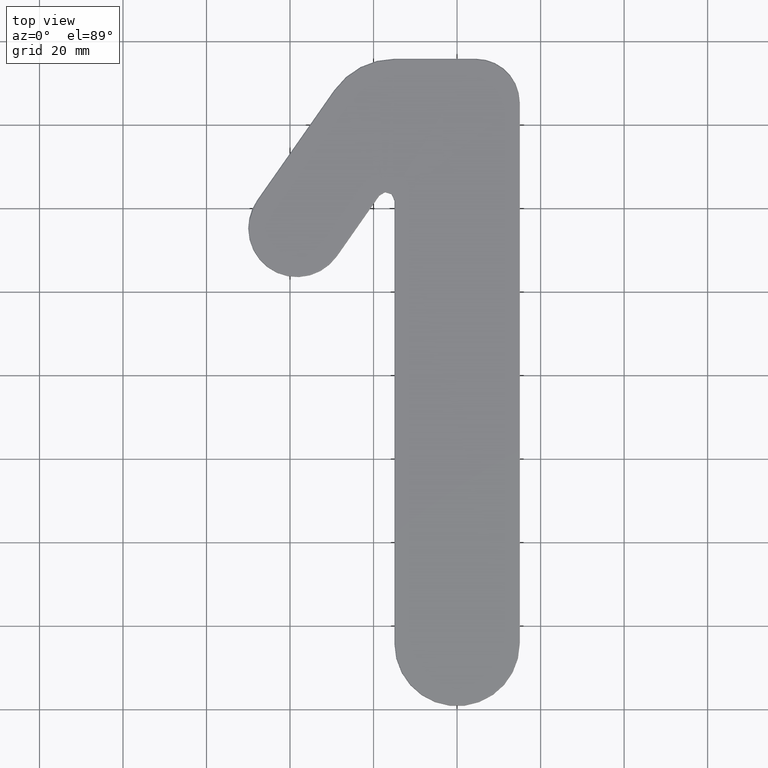
[diagram: clean part render]
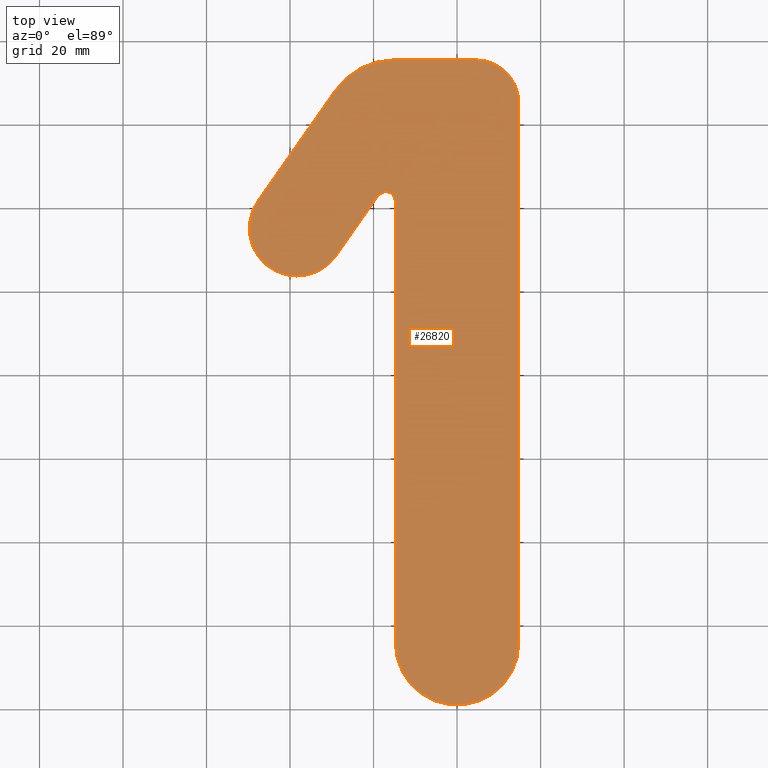
[diagram: same view with one face highlighted and labeled with its STEP entity id]
A machine part, top view. The second image highlights one B-rep face of the part: STEP entity #26820.
In plain terms, the highlighted planar face has unit normal (0, 0, 1).
Its self-contained STEP definition (entity closure, byte-faithful):
#406 = CARTESIAN_POINT ( 'NONE',  ( -47.68833330489447775, 120.9387713744101802, 2.000000000000000000 ) ) ;
#514 = VERTEX_POINT ( 'NONE', #11671 ) ;
#681 = AXIS2_PLACEMENT_3D ( 'NONE', #35210, #11685, #38317 ) ;
#3751 = DIRECTION ( 'NONE',  ( 0.000000000000000000, 0.000000000000000000, 1.000000000000000000 ) ) ;
#3869 = EDGE_CURVE ( 'NONE', #4858, #29657, #7836, .T. ) ;
#4858 = VERTEX_POINT ( 'NONE', #406 ) ;
#5072 = DIRECTION ( 'NONE',  ( -0.000000000000000000, -0.000000000000000000, -1.000000000000000000 ) ) ;
#5305 = DIRECTION ( 'NONE',  ( -0.5735764363510504893, -0.8191520442889886899, 0.000000000000000000 ) ) ;
#5585 = AXIS2_PLACEMENT_3D ( 'NONE', #18611, #3751, #36191 ) ;
#5671 = ORIENTED_EDGE ( 'NONE', *, *, #27822, .T. ) ;
#7131 = ORIENTED_EDGE ( 'NONE', *, *, #13863, .T. ) ;
#7633 = AXIS2_PLACEMENT_3D ( 'NONE', #35112, #28968, #14166 ) ;
#7836 = CIRCLE ( 'NONE', #28260, 11.40000000000002167 ) ;
#8680 = CARTESIAN_POINT ( 'NONE',  ( -38.34999999999997300, 114.4000000000081911, 2.000000000000000000 ) ) ;
#8915 = DIRECTION ( 'NONE',  ( -2.545154134637626879E-16, 1.000000000000000000, 0.000000000000000000 ) ) ;
#9527 = CARTESIAN_POINT ( 'NONE',  ( -18.84309209965029197, 122.3834581655139147, 2.000000000000000000 ) ) ;
#10209 = LINE ( 'NONE', #25854, #19883 ) ;
#11671 = CARTESIAN_POINT ( 'NONE',  ( 4.500000000000007994, 154.7500000000081570, 2.000000000000000000 ) ) ;
#11685 = DIRECTION ( 'NONE',  ( 0.000000000000000000, 0.000000000000000000, 1.000000000000000000 ) ) ;
#12222 = VERTEX_POINT ( 'NONE', #30129 ) ;
#12323 = EDGE_LOOP ( 'NONE', ( #26633, #5671, #22398, #7131, #25584, #23727, #36497, #28524, #37525, #27069 ) ) ;
#13611 = VERTEX_POINT ( 'NONE', #19030 ) ;
#13863 = EDGE_CURVE ( 'NONE', #16051, #4858, #10209, .T. ) ;
#13870 = CIRCLE ( 'NONE', #681, 10.25000000000000355 ) ;
#14160 = EDGE_CURVE ( 'NONE', #35082, #514, #13870, .T. ) ;
#14166 = DIRECTION ( 'NONE',  ( 1.000000000000000000, 0.000000000000000000, 0.000000000000000000 ) ) ;
#14772 = LINE ( 'NONE', #17229, #20810 ) ;
#15456 = PLANE ( 'NONE',  #36873 ) ;
#15810 = CARTESIAN_POINT ( 'NONE',  ( 14.75000000000004086, 15.00000000000003730, 2.000000000000000000 ) ) ;
#16051 = VERTEX_POINT ( 'NONE', #17758 ) ;
#17154 = CIRCLE ( 'NONE', #7633, 17.31468815701126118 ) ;
#17229 = CARTESIAN_POINT ( 'NONE',  ( -14.75000000000004619, 15.00000000000002665, 2.000000000000000000 ) ) ;
#17583 = DIRECTION ( 'NONE',  ( 1.000000000000000000, 0.000000000000000000, 0.000000000000000000 ) ) ;
#17758 = CARTESIAN_POINT ( 'NONE',  ( -29.18336220004212578, 147.3666089726251869, 2.000000000000000000 ) ) ;
#18224 = VECTOR ( 'NONE', #35854, 1000.000000000000000 ) ;
#18270 = CARTESIAN_POINT ( 'NONE',  ( -14.99999999999998579, 154.7500000000081855, 2.000000000000000000 ) ) ;
#18423 = DIRECTION ( 'NONE',  ( 1.000000000000000000, 0.000000000000000000, -0.000000000000000000 ) ) ;
#18611 = CARTESIAN_POINT ( 'NONE',  ( -1.836970198721038266E-15, 15.00000000000003730, 2.000000000000000000 ) ) ;
#18855 = EDGE_CURVE ( 'NONE', #29657, #28218, #31021, .T. ) ;
#19030 = CARTESIAN_POINT ( 'NONE',  ( -14.75000000000005862, 121.0929111837240271, 2.000000000000000000 ) ) ;
#19586 = FACE_OUTER_BOUND ( 'NONE', #12323, .T. ) ;
#19882 = VECTOR ( 'NONE', #24125, 999.9999999999998863 ) ;
#19883 = VECTOR ( 'NONE', #5305, 1000.000000000000114 ) ;
#20032 = DIRECTION ( 'NONE',  ( 1.000000000000000000, 6.167905692361976222E-15, 0.000000000000000000 ) ) ;
#20810 = VECTOR ( 'NONE', #38033, 1000.000000000000000 ) ;
#21144 = VECTOR ( 'NONE', #8915, 1000.000000000000000 ) ;
#21850 = CARTESIAN_POINT ( 'NONE',  ( 14.75000000000000888, 144.5000000000081570, 2.000000000000000000 ) ) ;
#22398 = ORIENTED_EDGE ( 'NONE', *, *, #31873, .T. ) ;
#23727 = ORIENTED_EDGE ( 'NONE', *, *, #18855, .T. ) ;
#24125 = DIRECTION ( 'NONE',  ( 0.5735764363510501562, 0.8191520442889890230, -0.000000000000000000 ) ) ;
#24234 = LINE ( 'NONE', #18270, #18224 ) ;
#24948 = CARTESIAN_POINT ( 'NONE',  ( -14.99999999999998579, 154.7500000000081855, 2.000000000000000000 ) ) ;
#25584 = ORIENTED_EDGE ( 'NONE', *, *, #3869, .T. ) ;
#25854 = CARTESIAN_POINT ( 'NONE',  ( -47.68833330489448485, 120.9387713744101660, 2.000000000000000000 ) ) ;
#26195 = CARTESIAN_POINT ( 'NONE',  ( -29.01166669510547536, 107.8612286256062021, 2.000000000000000000 ) ) ;
#26633 = ORIENTED_EDGE ( 'NONE', *, *, #14160, .T. ) ;
#26820 = ADVANCED_FACE ( 'NONE', ( #19586 ), #15456, .T. ) ;
#27069 = ORIENTED_EDGE ( 'NONE', *, *, #36269, .T. ) ;
#27822 = EDGE_CURVE ( 'NONE', #514, #29813, #24234, .T. ) ;
#28218 = VERTEX_POINT ( 'NONE', #28227 ) ;
#28227 = CARTESIAN_POINT ( 'NONE',  ( -18.84309209965029908, 122.3834581655139004, 2.000000000000000000 ) ) ;
#28260 = AXIS2_PLACEMENT_3D ( 'NONE', #8680, #29368, #17583 ) ;
#28524 = ORIENTED_EDGE ( 'NONE', *, *, #33338, .T. ) ;
#28559 = LINE ( 'NONE', #38360, #21144 ) ;
#28757 = CARTESIAN_POINT ( 'NONE',  ( -17.00000000000006040, 121.0929111837240271, 2.000000000000000000 ) ) ;
#28968 = DIRECTION ( 'NONE',  ( 0.000000000000000000, 0.000000000000000000, 1.000000000000000000 ) ) ;
#29368 = DIRECTION ( 'NONE',  ( 0.000000000000000000, 0.000000000000000000, 1.000000000000000000 ) ) ;
#29657 = VERTEX_POINT ( 'NONE', #26195 ) ;
#29813 = VERTEX_POINT ( 'NONE', #24948 ) ;
#30088 = CARTESIAN_POINT ( 'NONE',  ( -15.00000000000000533, 137.4353118429969243, 2.000000000000000000 ) ) ;
#30129 = CARTESIAN_POINT ( 'NONE',  ( -14.75000000000004619, 15.00000000000003197, 2.000000000000000000 ) ) ;
#30679 = AXIS2_PLACEMENT_3D ( 'NONE', #28757, #5072, #20032 ) ;
#31021 = LINE ( 'NONE', #9527, #19882 ) ;
#31474 = EDGE_CURVE ( 'NONE', #28218, #13611, #37079, .T. ) ;
#31873 = EDGE_CURVE ( 'NONE', #29813, #16051, #17154, .T. ) ;
#32252 = CIRCLE ( 'NONE', #5585, 14.75000000000004263 ) ;
#33338 = EDGE_CURVE ( 'NONE', #13611, #12222, #14772, .T. ) ;
#35082 = VERTEX_POINT ( 'NONE', #21850 ) ;
#35112 = CARTESIAN_POINT ( 'NONE',  ( -15.00000000000000533, 137.4353118429969243, 2.000000000000000000 ) ) ;
#35210 = CARTESIAN_POINT ( 'NONE',  ( 4.500000000000007105, 144.5000000000081570, 2.000000000000000000 ) ) ;
#35505 = VERTEX_POINT ( 'NONE', #15810 ) ;
#35854 = DIRECTION ( 'NONE',  ( -1.000000000000000000, 1.423362852083534491E-15, 0.000000000000000000 ) ) ;
#36005 = EDGE_CURVE ( 'NONE', #12222, #35505, #32252, .T. ) ;
#36131 = DIRECTION ( 'NONE',  ( 0.000000000000000000, 0.000000000000000000, 1.000000000000000000 ) ) ;
#36191 = DIRECTION ( 'NONE',  ( 1.000000000000000000, 0.000000000000000000, 0.000000000000000000 ) ) ;
#36269 = EDGE_CURVE ( 'NONE', #35505, #35082, #28559, .T. ) ;
#36497 = ORIENTED_EDGE ( 'NONE', *, *, #31474, .T. ) ;
#36873 = AXIS2_PLACEMENT_3D ( 'NONE', #30088, #36131, #18423 ) ;
#37079 = CIRCLE ( 'NONE', #30679, 2.250000000000001776 ) ;
#37525 = ORIENTED_EDGE ( 'NONE', *, *, #36005, .T. ) ;
#38033 = DIRECTION ( 'NONE',  ( 1.308078706953560275E-16, -1.000000000000000000, 0.000000000000000000 ) ) ;
#38317 = DIRECTION ( 'NONE',  ( 1.000000000000000000, 0.000000000000000000, 0.000000000000000000 ) ) ;
#38360 = CARTESIAN_POINT ( 'NONE',  ( 14.75000000000000888, 144.5000000000081570, 2.000000000000000000 ) ) ;